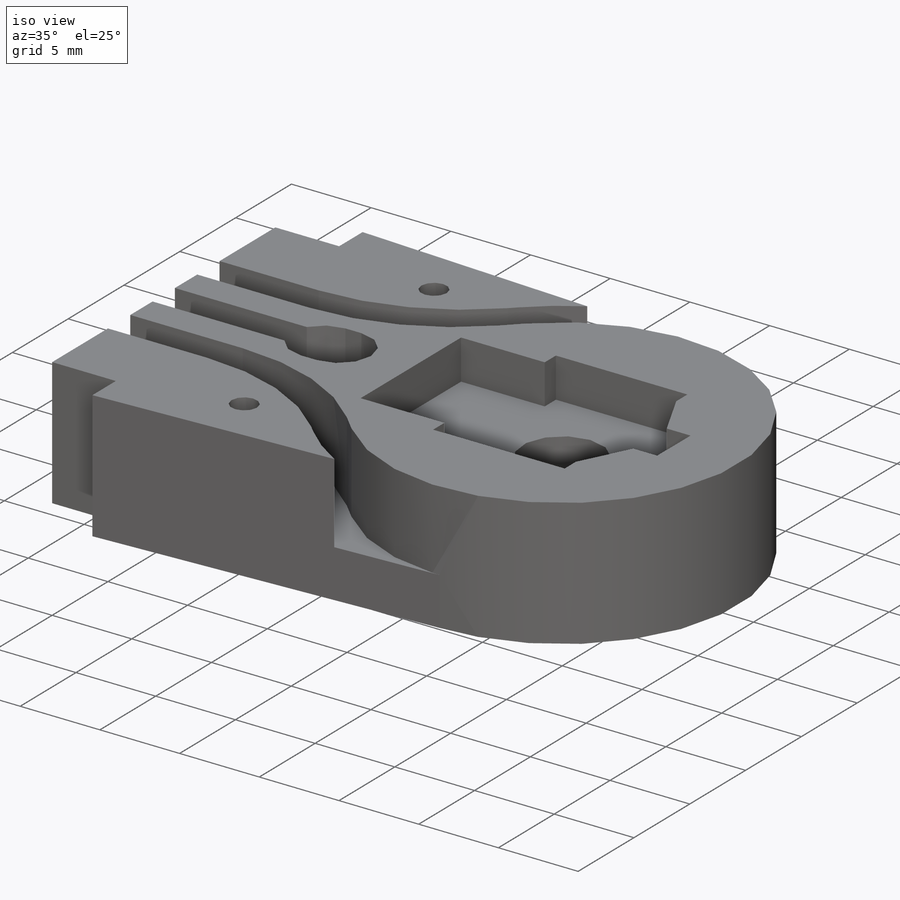
[diagram: iso view]
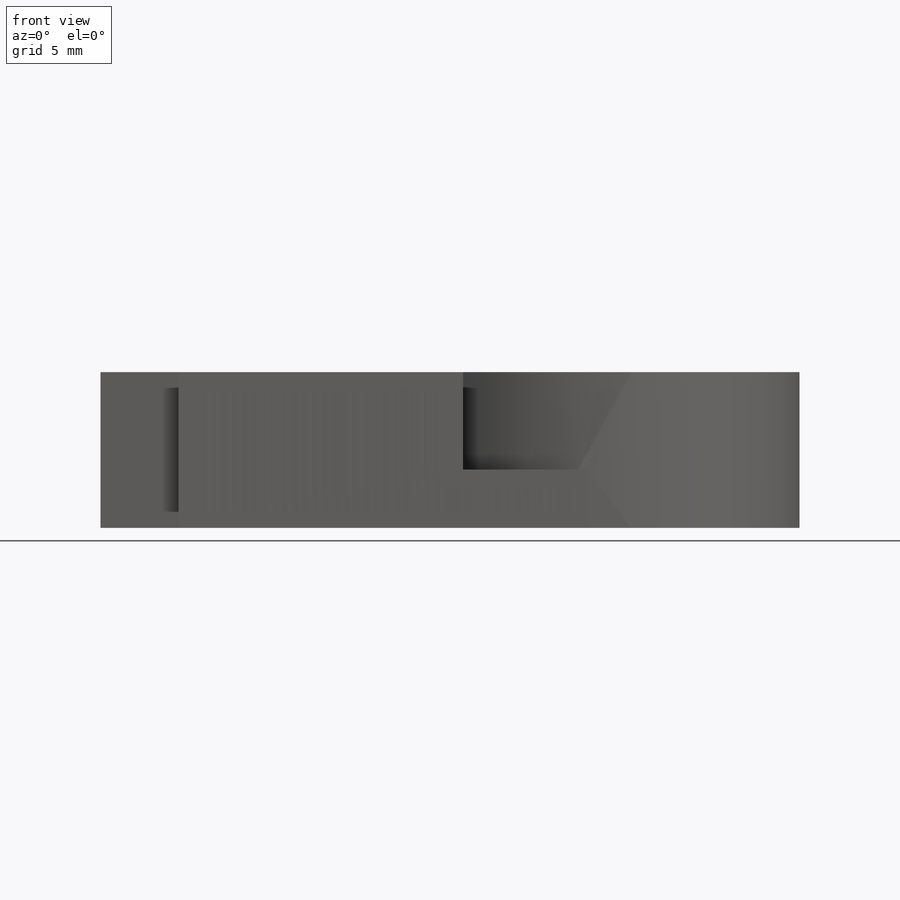
[diagram: front view]
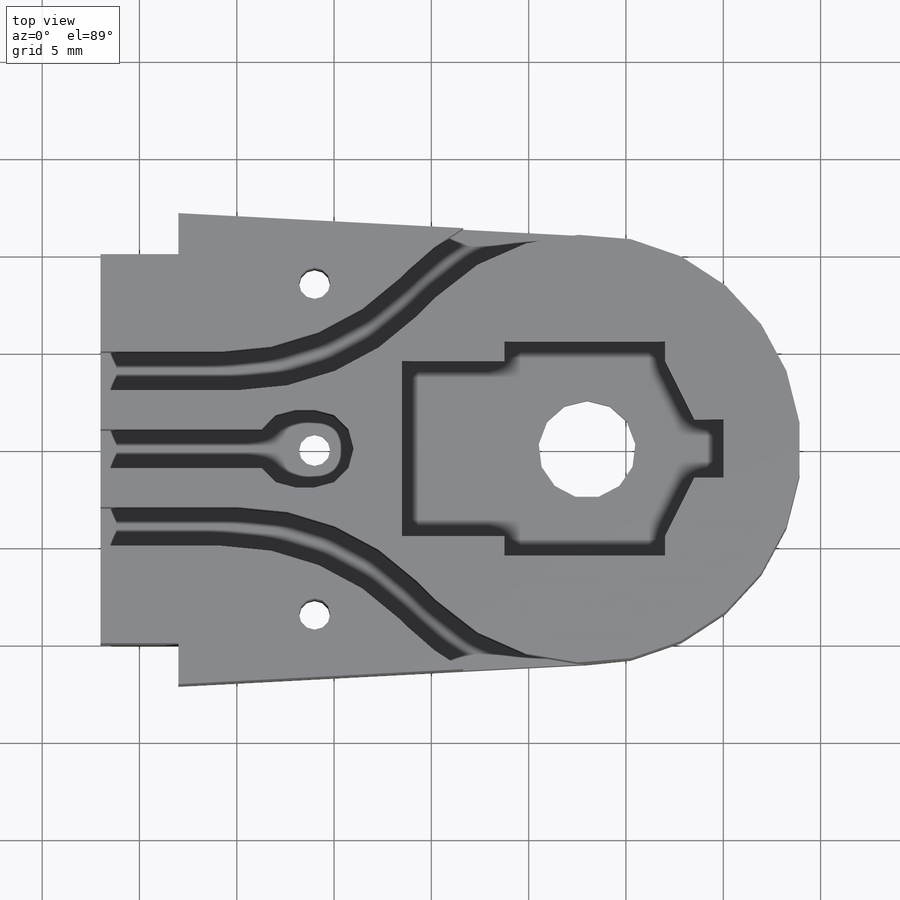
[diagram: top view]
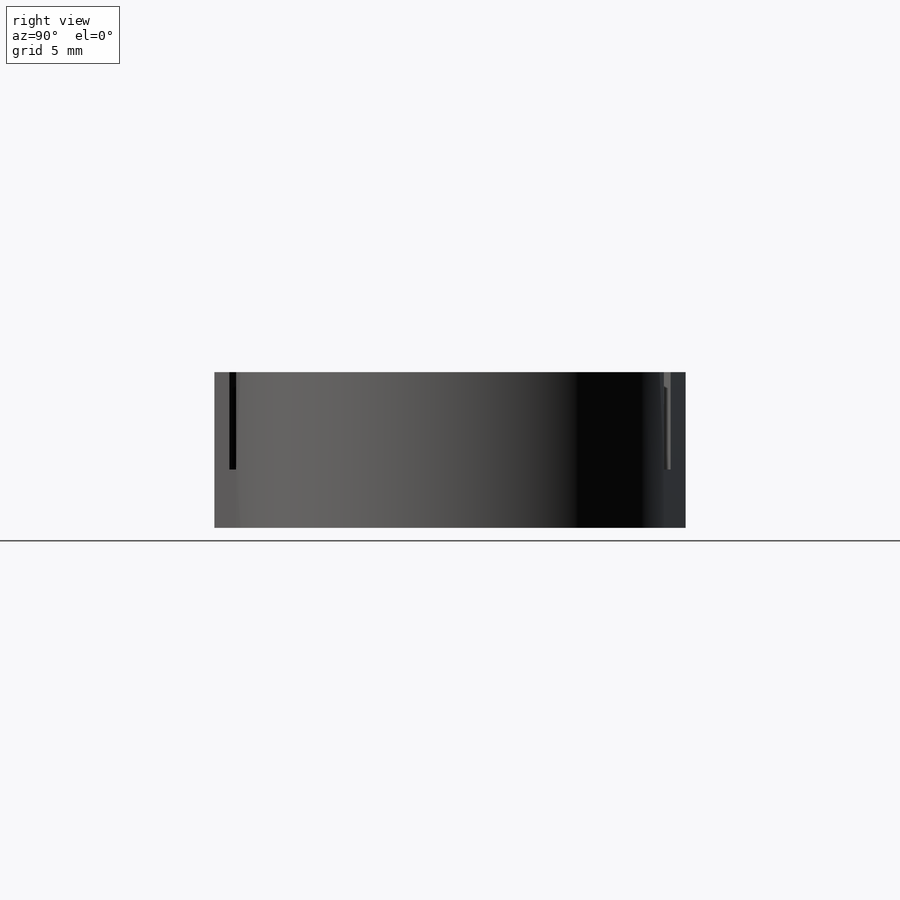
[diagram: right view]
SOLIDWORKS PART (.sldprt)
format: sldprt  version: not decoded by parser v0  size: 332,288 bytes
history: native  units: mm
features: sketch x7, cut_extrude x6, material x1, extrude x1 (+14 scaffold rows collapsed; 1 parser-record rows omitted)
feature tree (30):
  scaffold x14  (default folders/planes/origin — collapsed)
  material  "Material <not specified>"
  sketch  "Sketch1"  dims[D1=~2.191017mm]
  extrude  "Boss-Extrude1"  Depth=8mm
  parser-record x1  (decoder bookkeeping rows leaked as tree rows — omitted from the tree; the rows remain in map.json)
  sketch  "Sketch2"  dims[D1=8.5mm]
  cut_extrude  "Screw Holes"  [1 undecoded]
  sketch  "Sketch10"  dims[D1=2.5mm]
  cut_extrude  "Screw Heads"  Depth=2mm
  sketch  "Sketch 3"  dims[c1.D1=13.0mm c1.D2=13.0mm c1.D3=13.0mm c1.D4=13.0mm c2.D1=~5.928932mm]
  cut_extrude  "Distal/Middle Cable Canal"  Depth=5mm
  sketch  "Sketch3"  dims[D1=~26.369905mm]
  cut_extrude  "Pot Insert"  Depth=2.5mm
  sketch  "Sketch5"  dims[D1=1.0mm]
  cut_extrude  "Cut-Extrude1"  Depth=5mm
  sketch  "Sketch7"  dims[D1=15.0mm]
  cut_extrude  "Cut-Extrude2"  Depth=4mm
decode coverage: 13 of 14 modeling features carry decoded parameters
note: ~ marks probable driven/reference dimensions
note: 1 parameter value undecoded
note: suppression state not decoded; provenance and decode notes live in map.json
